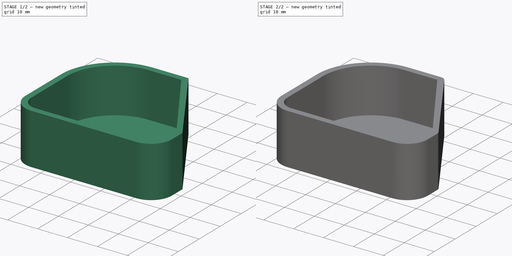
[diagram: build sequence overview — one tinted view per stage of 2, left to right]
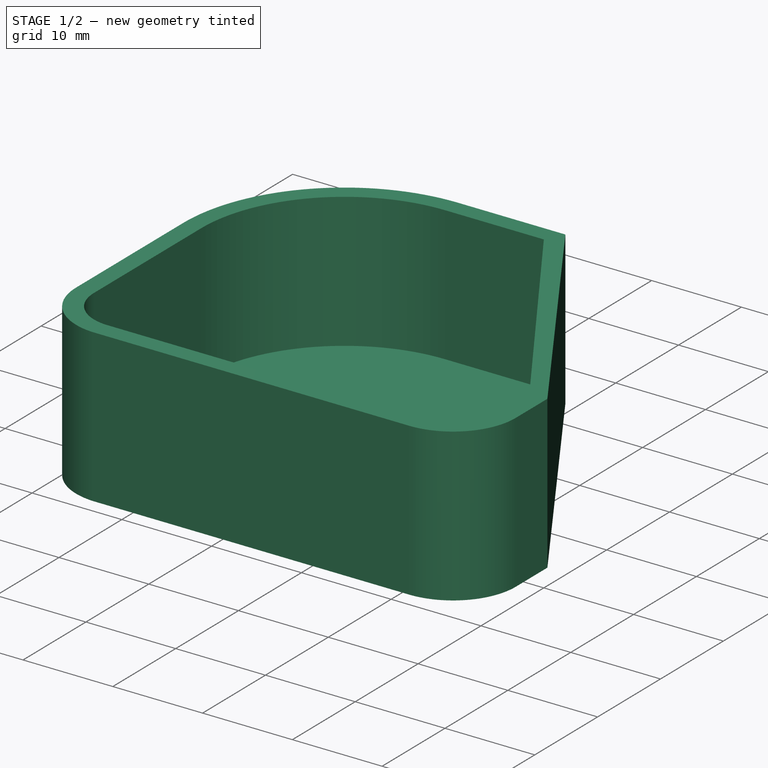
[diagram: stage 1 of 2 — iso view after this stage's code; geometry added in this stage tinted green]
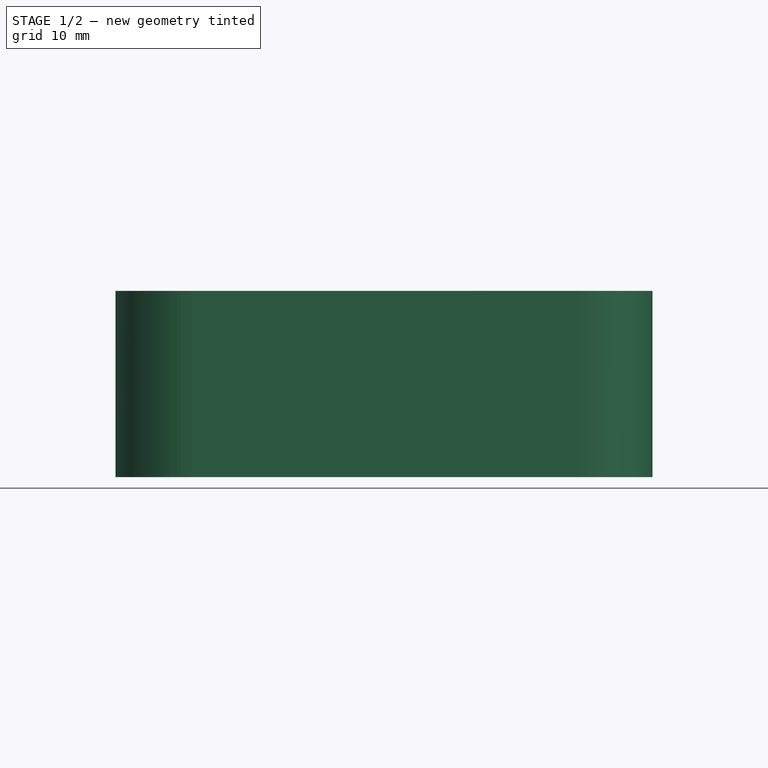
[diagram: stage 1 of 2 — front view after this stage's code; geometry added in this stage tinted green]
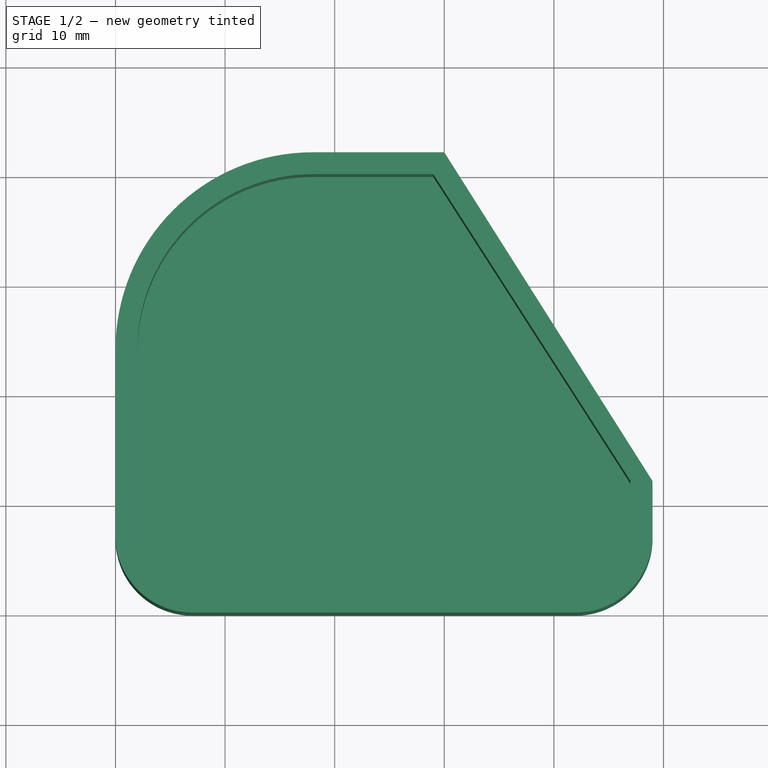
[diagram: stage 1 of 2 — top view after this stage's code; geometry added in this stage tinted green]
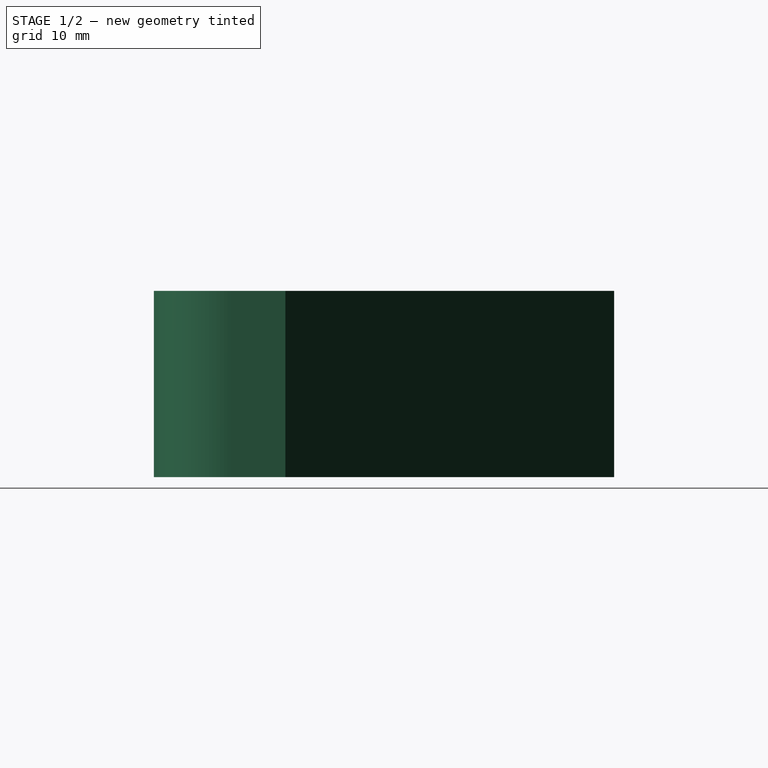
[diagram: stage 1 of 2 — right view after this stage's code; geometry added in this stage tinted green]
FCSTD DOCUMENT  (FreeCAD 0.21R33694 (Git))
Label: awning_channel
License: All rights reserved
LicenseURL: https://en.wikipedia.org/wiki/All_rights_reserved
objects: Sketcher::SketchObject×2, Spreadsheet::Sheet×1, PartDesign::Pad×1, PartDesign::Pocket×1, PartDesign::Fillet×1, PartDesign::Body×1
note: 9 computed .brp shape members not serialized (recipe doc carries the construction recipe); baked Part::Feature solids carry a one-line shape summary decoded from their .brp

FEATURE [Sketcher::SketchObject] Sketch
  FullyConstrained = false
  MapMode = 5
  Support = -> [XY_Plane]
  expr: Constraints[10] = <<dimensions>>.width + 2 * <<dimensions>>.wall - <<dimensions>>.radius_small
  expr: Constraints[13] = <<dimensions>>.radius_big
  expr: Constraints[14] = <<dimensions>>.radius_big
  expr: Constraints[15] = <<dimensions>>.height + 2 * <<dimensions>>.wall - <<dimensions>>.radius_big
  expr: Constraints[4] = <<dimensions>>.radius_small
  expr: Constraints[5] = <<dimensions>>.radius_small
  expr: Constraints[6] = <<dimensions>>.radius_small
  expr: Constraints[9] = <<dimensions>>.radius_small
  sketch-geometry (8):
    g0: LineSegment StartX=7 StartY=0 StartZ=0 EndX=42 EndY=0 EndZ=0
    g1: LineSegment StartX=48.9996 StartY=7.07729 StartZ=0 EndX=48.9996 EndY=12 EndZ=0
    g2: LineSegment StartX=30 StartY=42 StartZ=0 EndX=18 EndY=42 EndZ=0
    g3: LineSegment StartX=2.65954e-07 StartY=23.9969 StartZ=0 EndX=2.65954e-07 EndY=7.00193 EndZ=0
    g4: ArcOfCircle CenterX=7 CenterY=7 CenterZ=0 NormalX=0 NormalY=0 NormalZ=1 AngleXU=0 Radius=7 StartAngle=3.14132 EndAngle=4.71239
    g5: ArcOfCircle CenterX=42 CenterY=7 CenterZ=0 NormalX=0 NormalY=0 NormalZ=1 AngleXU=0 Radius=7 StartAngle=4.71239 EndAngle=6.29423
    g6: ArcOfCircle CenterX=18 CenterY=24 CenterZ=0 NormalX=0 NormalY=0 NormalZ=1 AngleXU=0 Radius=18 StartAngle=1.5708 EndAngle=3.14176
    g7: LineSegment StartX=30 StartY=42 StartZ=0 EndX=48.9996 EndY=12 EndZ=0
  constraints (24):
    c: Horizontal(g0)
    c: Horizontal(g2)
    c: Vertical(g1)
    c: Vertical(g3)
    c: Radius(g4) = 7
    c: DistanceY(g-1,g4) = 7
    c: DistanceX(g-1,g4) = 7
    c: Coincident(g0,g4)
    c: Coincident(g3,g4)
    c: Radius(g5) = 7
    c: DistanceX(g-1,g5) = 42
    c: Coincident(g5,g1)
    c: Coincident(g5,g0)
    c: Radius(g6) = 18
    c: DistanceX(g-1,g6) = 18
    c: DistanceY(g-1,g6) = 24
    c: PointOnObject(g3,g6)
    c: PointOnObject(g6,g3)
    c: Coincident(g6,g2)
    c: Coincident(g3,g6)
    c: Coincident(g2,g7)
    c: Coincident(g1,g7)
    c: DistanceY(g-1,g1) = 12
    c: DistanceX(g-1,g2) = 30
FEATURE [Spreadsheet::Sheet] Spreadsheet  label="dimensions"
  cells = A1='width; B1(width)==45 mm; A2='height; B2(height)==38 mm; A3='depth; B3(depth)==15 mm; A4='wall; B4(wall)==2 mm; A5='radius_big; B5(radius_big)==18 mm; A6='radius_small; B6(radius_small)==7 mm; A7='tolerance; B7(tolerance)==0.2 mm
FEATURE [PartDesign::Pad] Pad
  Direction = (0,0,1)
  Length = 17
  Length2 = 10
  Profile = -> Sketch
  ReferenceAxis = -> Sketch [N_Axis]
  Type = 0
  expr: Length = <<dimensions>>.depth + <<dimensions>>.wall
FEATURE [Sketcher::SketchObject] Sketch001
  AttachmentOffset = pos=(0,0,17) rot=(0,0,1;0rad)
  FullyConstrained = false
  MapMode = 5
  Placement = pos=(0,0,17) rot=(0,0,1;0rad)
  Support = -> [XY_Plane]
  expr: .AttachmentOffset.Base.z = <<dimensions>>.depth + <<dimensions>>.wall
  expr: Constraints[10] = <<dimensions>>.width + 2 * <<dimensions>>.wall - <<dimensions>>.radius_small
  expr: Constraints[13] = <<dimensions>>.radius_big - <<dimensions>>.wall
  expr: Constraints[14] = <<dimensions>>.radius_big
  expr: Constraints[15] = <<dimensions>>.height + 2 * <<dimensions>>.wall - <<dimensions>>.radius_big
  expr: Constraints[23] = 30 mm - 1 mm
  expr: Constraints[4] = <<dimensions>>.radius_small - <<dimensions>>.wall
  expr: Constraints[5] = <<dimensions>>.radius_small
  expr: Constraints[6] = <<dimensions>>.radius_small
  expr: Constraints[9] = <<dimensions>>.radius_small - <<dimensions>>.wall
  sketch-geometry (8):
    g0: LineSegment StartX=6.88743 StartY=2.00127 StartZ=0 EndX=42.0115 EndY=2.00127 EndZ=0
    g1: LineSegment StartX=46.9954 StartY=7.21662 StartZ=0 EndX=46.9954 EndY=12 EndZ=0
    g2: LineSegment StartX=29 StartY=40 StartZ=0 EndX=17.9986 EndY=40 EndZ=0
    g3: LineSegment StartX=2.00003 StartY=23.9689 StartZ=0 EndX=2.00003 EndY=6.98259 EndZ=0
    g4: ArcOfCircle CenterX=7 CenterY=7 CenterZ=0 NormalX=0 NormalY=0 NormalZ=1 AngleXU=0 Radius=5 StartAngle=3.14507 EndAngle=4.68987
    g5: ArcOfCircle CenterX=42 CenterY=7.00125 CenterZ=0 NormalX=0 NormalY=0 NormalZ=1 AngleXU=0 Radius=5 StartAngle=4.71469 EndAngle=6.32627
    g6: ArcOfCircle CenterX=18 CenterY=24 CenterZ=0 NormalX=0 NormalY=0 NormalZ=1 AngleXU=0 Radius=16 StartAngle=1.57088 EndAngle=3.14354
    g7: LineSegment StartX=29 StartY=40 StartZ=0 EndX=46.9954 EndY=12 EndZ=0
  constraints (24):
    c: Horizontal(g0)
    c: Horizontal(g2)
    c: Vertical(g1)
    c: Vertical(g3)
    c: Radius(g4) = 5
    c: DistanceY(g-1,g4) = 7
    c: DistanceX(g-1,g4) = 7
    c: Coincident(g0,g4)
    c: Coincident(g3,g4)
    c: Radius(g5) = 5
    c: DistanceX(g-1,g5) = 42
    c: Coincident(g5,g1)
    c: Coincident(g5,g0)
    c: Radius(g6) = 16
    c: DistanceX(g-1,g6) = 18
    c: DistanceY(g-1,g6) = 24
    c: PointOnObject(g3,g6)
    c: PointOnObject(g6,g3)
    c: Coincident(g6,g2)
    c: Coincident(g3,g6)
    c: Coincident(g2,g7)
    c: Coincident(g1,g7)
    c: DistanceY(g-1,g1) = 12
    c: DistanceX(g-1,g2) = 29
FEATURE [PartDesign::Pocket] Pocket
  BaseFeature = -> Pad
  Direction = (0,0,-1)
  Length = 15
  Length2 = 5
  Profile = -> Sketch001
  ReferenceAxis = -> Sketch001 [N_Axis]
  Type = 0
  expr: Length = <<dimensions>>.depth
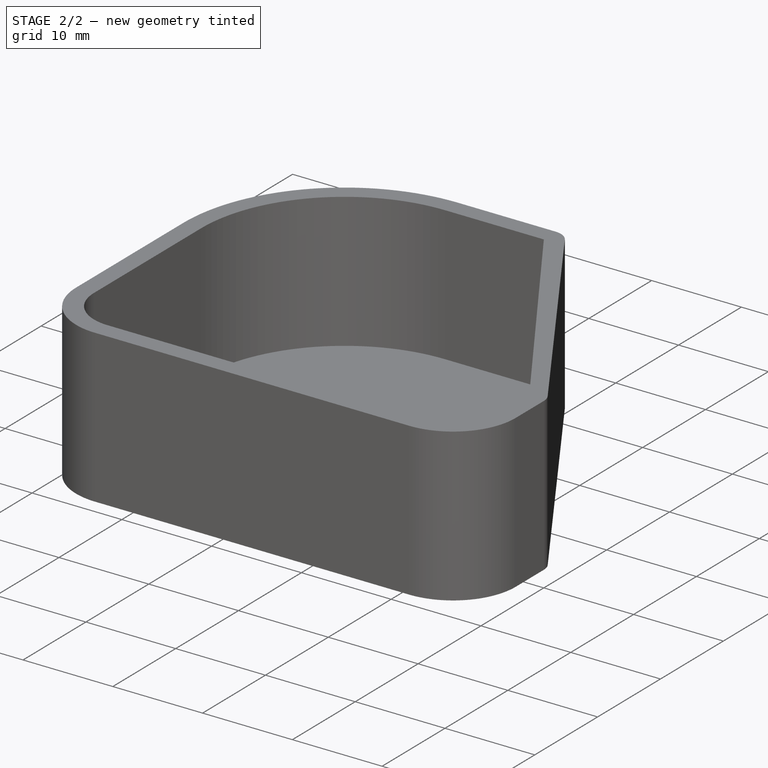
[diagram: stage 2 of 2 — iso view after this stage's code; geometry added in this stage tinted green]
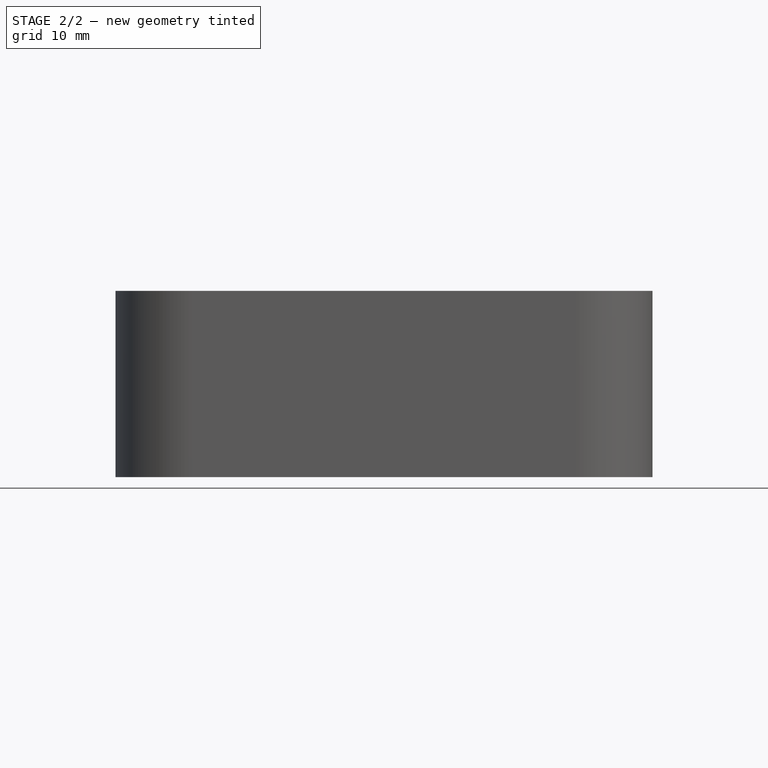
[diagram: stage 2 of 2 — front view after this stage's code; geometry added in this stage tinted green]
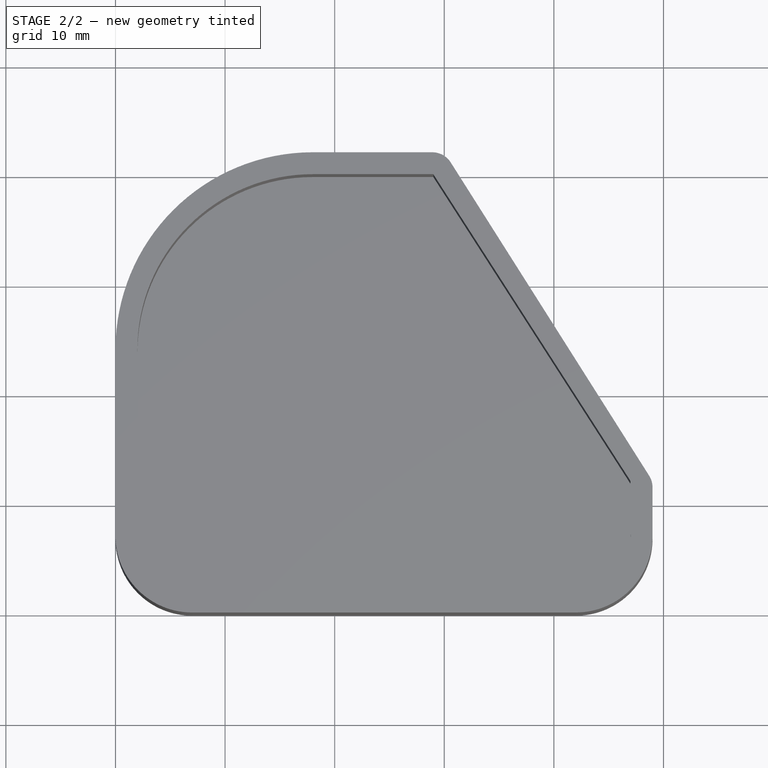
[diagram: stage 2 of 2 — top view after this stage's code; geometry added in this stage tinted green]
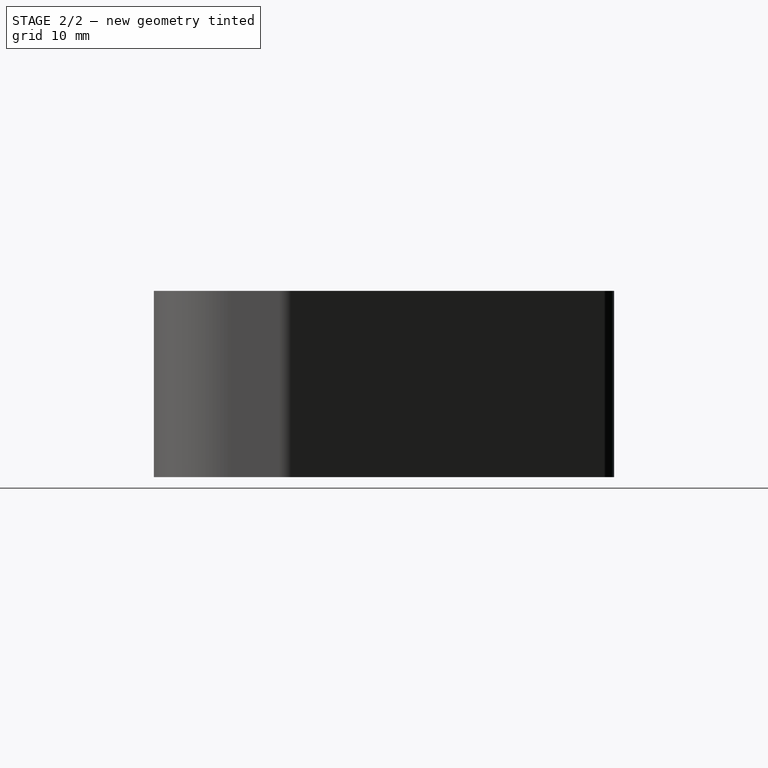
[diagram: stage 2 of 2 — right view after this stage's code; geometry added in this stage tinted green]
FEATURE [PartDesign::Fillet] Fillet
  Base = -> Pocket [Edge5,Edge1]
  BaseFeature = -> Pocket
  Radius = 2
  SupportTransform = false
  UseAllEdges = false
FEATURE [PartDesign::Body] Body
  Group = -> [Sketch,Pad,Sketch001,Pocket,Fillet]
  Origin = -> Origin
  Tip = -> Fillet
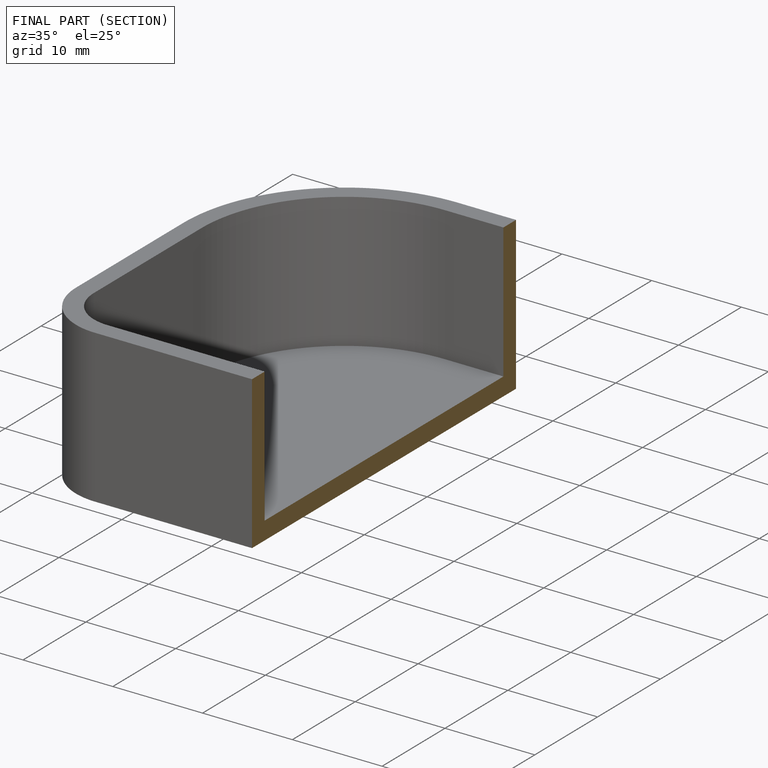
[diagram: finished part — half-section view (interior)]
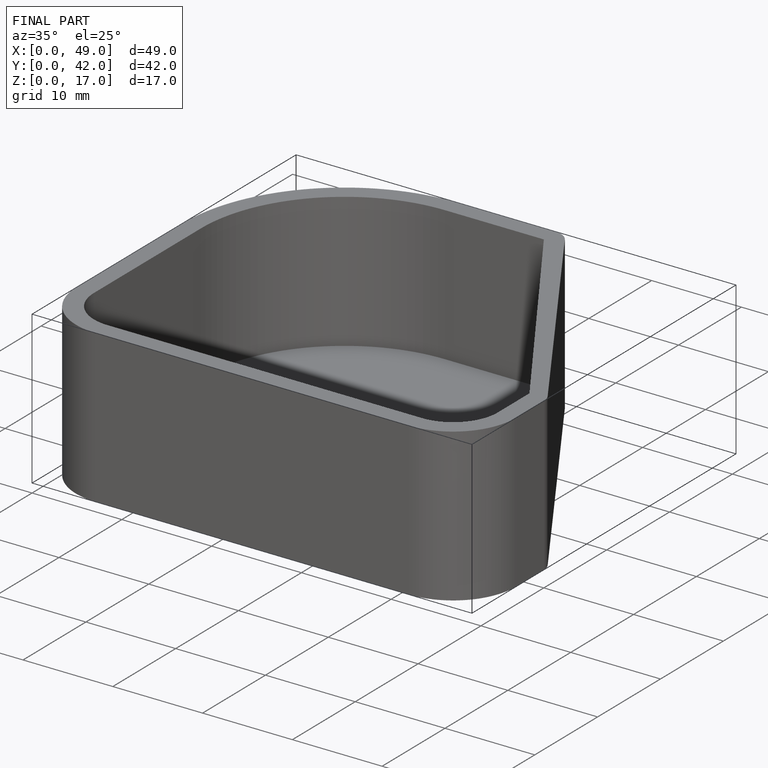
[diagram: finished part — iso view with bounding-box wireframe]
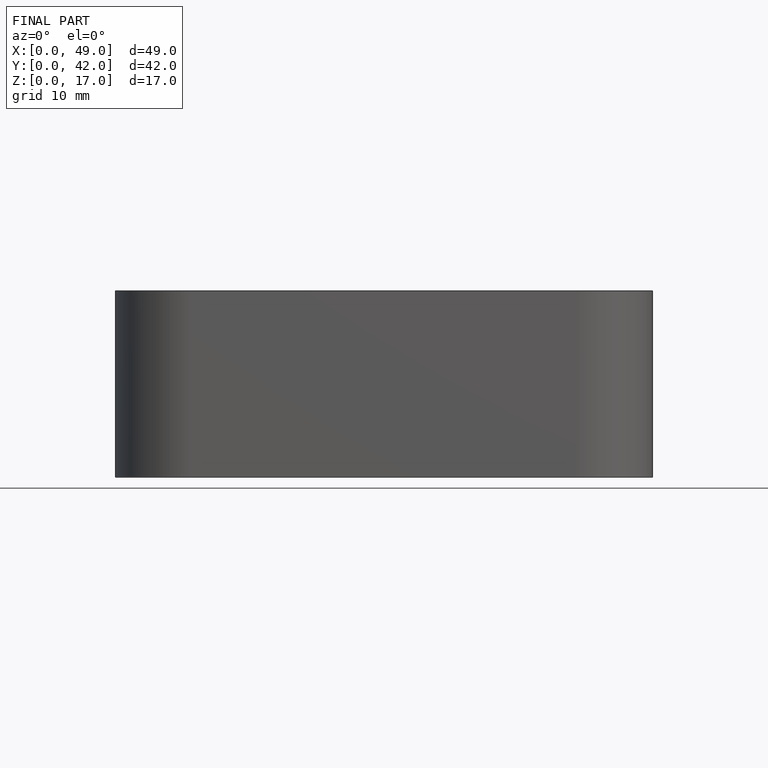
[diagram: finished part — front view with bounding-box wireframe]
